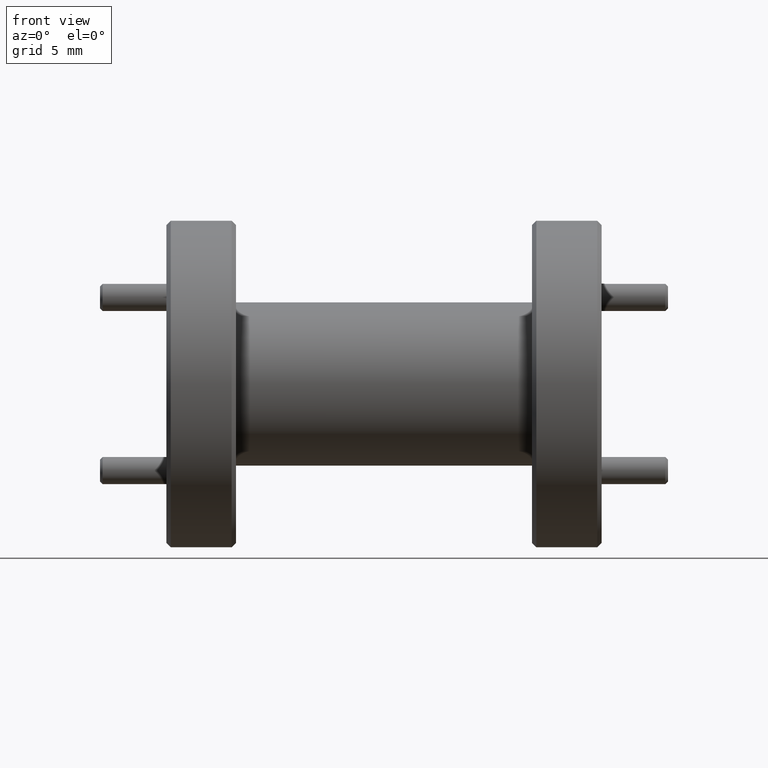
[diagram: clean part render]
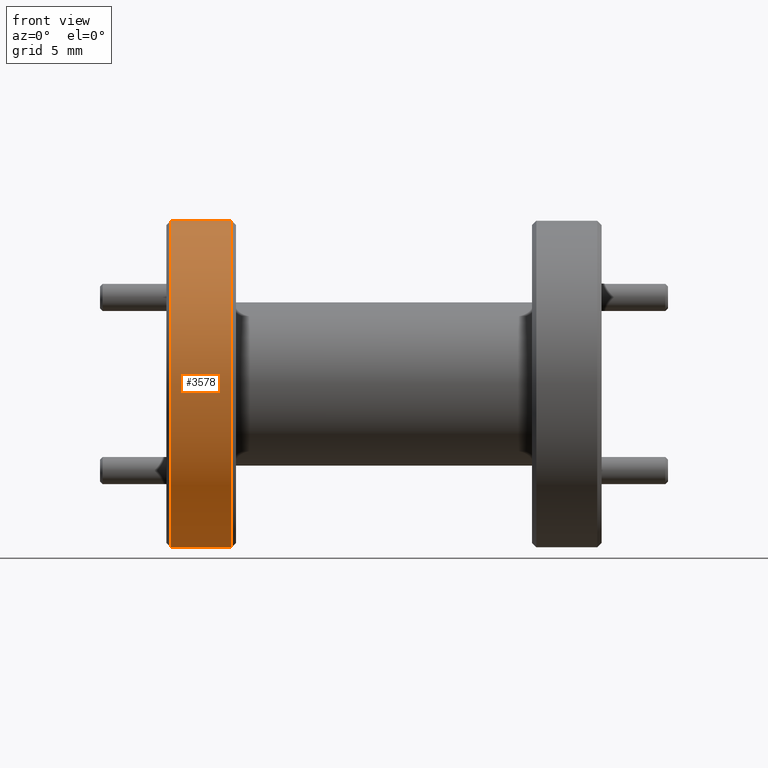
[diagram: same view with one face highlighted and labeled with its STEP entity id]
A machine part, front view. The second image highlights one B-rep face of the part: STEP entity #3578.
In plain terms, the highlighted cylindrical surface (partial cylindrical patch) has radius 9.525 mm, axis along (-1, -0, -0).
Its self-contained STEP definition (entity closure, byte-faithful):
#31 = CARTESIAN_POINT ( 'NONE',  ( -2.694678697788351700, 0.7866859362712517200, 1.262482407934807800 ) ) ;
#52 = DIRECTION ( 'NONE',  ( 1.000000000000000000, 0.0000000000000000000, 0.0000000000000000000 ) ) ;
#78 = CARTESIAN_POINT ( 'NONE',  ( -3.044678697788352200, 0.7866859362712517200, 1.262482407934807800 ) ) ;
#126 = EDGE_CURVE ( 'NONE', #704, #370, #2853, .T. ) ;
#142 = VECTOR ( 'NONE', #2230, 39.37007874015748100 ) ;
#148 = CARTESIAN_POINT ( 'NONE',  ( -3.044678697788352200, 0.7866859362712517200, 0.5124824079348078200 ) ) ;
#165 = AXIS2_PLACEMENT_3D ( 'NONE', #3978, #1990, #1040 ) ;
#332 = ORIENTED_EDGE ( 'NONE', *, *, #2088, .F. ) ;
#370 = VERTEX_POINT ( 'NONE', #869 ) ;
#704 = VERTEX_POINT ( 'NONE', #78 ) ;
#775 = LINE ( 'NONE', #2945, #142 ) ;
#869 = CARTESIAN_POINT ( 'NONE',  ( -3.184678697788351900, 0.7866859362712517200, 1.262482407934807800 ) ) ;
#1040 = DIRECTION ( 'NONE',  ( 0.0000000000000000000, 0.0000000000000000000, 1.000000000000000000 ) ) ;
#1043 = FACE_OUTER_BOUND ( 'NONE', #2740, .T. ) ;
#1064 = CIRCLE ( 'NONE', #2085, 0.3749999999999999400 ) ;
#1284 = DIRECTION ( 'NONE',  ( 0.0000000000000000000, 0.0000000000000000000, 1.000000000000000000 ) ) ;
#1318 = CYLINDRICAL_SURFACE ( 'NONE', #4161, 0.3749999999999999400 ) ;
#1413 = CARTESIAN_POINT ( 'NONE',  ( -3.044678697788352200, 0.7866859362712517200, 0.8874824079348078200 ) ) ;
#1931 = DIRECTION ( 'NONE',  ( -1.000000000000000000, -0.0000000000000000000, -0.0000000000000000000 ) ) ;
#1990 = DIRECTION ( 'NONE',  ( 1.000000000000000000, 0.0000000000000000000, 0.0000000000000000000 ) ) ;
#2014 = VERTEX_POINT ( 'NONE', #3654 ) ;
#2085 = AXIS2_PLACEMENT_3D ( 'NONE', #1413, #52, #3090 ) ;
#2088 = EDGE_CURVE ( 'NONE', #704, #2220, #1064, .T. ) ;
#2179 = VECTOR ( 'NONE', #3380, 39.37007874015748100 ) ;
#2220 = VERTEX_POINT ( 'NONE', #148 ) ;
#2230 = DIRECTION ( 'NONE',  ( -1.000000000000000000, -0.0000000000000000000, -0.0000000000000000000 ) ) ;
#2431 = CIRCLE ( 'NONE', #165, 0.3749999999999999400 ) ;
#2513 = EDGE_CURVE ( 'NONE', #370, #2014, #2431, .T. ) ;
#2555 = ORIENTED_EDGE ( 'NONE', *, *, #3645, .F. ) ;
#2725 = ORIENTED_EDGE ( 'NONE', *, *, #2513, .T. ) ;
#2740 = EDGE_LOOP ( 'NONE', ( #2555, #332, #3931, #2725 ) ) ;
#2853 = LINE ( 'NONE', #31, #2179 ) ;
#2945 = CARTESIAN_POINT ( 'NONE',  ( -2.694678697788351700, 0.7866859362712517200, 0.5124824079348078200 ) ) ;
#3090 = DIRECTION ( 'NONE',  ( 0.0000000000000000000, 0.0000000000000000000, 1.000000000000000000 ) ) ;
#3380 = DIRECTION ( 'NONE',  ( -1.000000000000000000, -0.0000000000000000000, -0.0000000000000000000 ) ) ;
#3577 = CARTESIAN_POINT ( 'NONE',  ( -2.694678697788351700, 0.7866859362712517200, 0.8874824079348078200 ) ) ;
#3578 = ADVANCED_FACE ( 'NONE', ( #1043 ), #1318, .T. ) ;
#3645 = EDGE_CURVE ( 'NONE', #2220, #2014, #775, .T. ) ;
#3654 = CARTESIAN_POINT ( 'NONE',  ( -3.184678697788351900, 0.7866859362712517200, 0.5124824079348079300 ) ) ;
#3931 = ORIENTED_EDGE ( 'NONE', *, *, #126, .T. ) ;
#3978 = CARTESIAN_POINT ( 'NONE',  ( -3.184678697788351900, 0.7866859362712517200, 0.8874824079348078200 ) ) ;
#4161 = AXIS2_PLACEMENT_3D ( 'NONE', #3577, #1931, #1284 ) ;